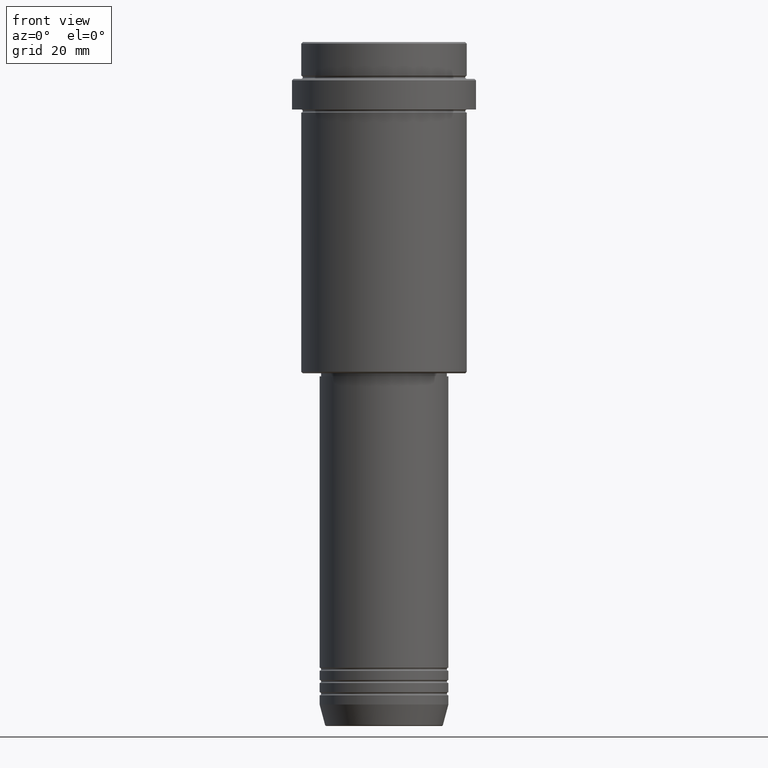
[diagram: clean part render]
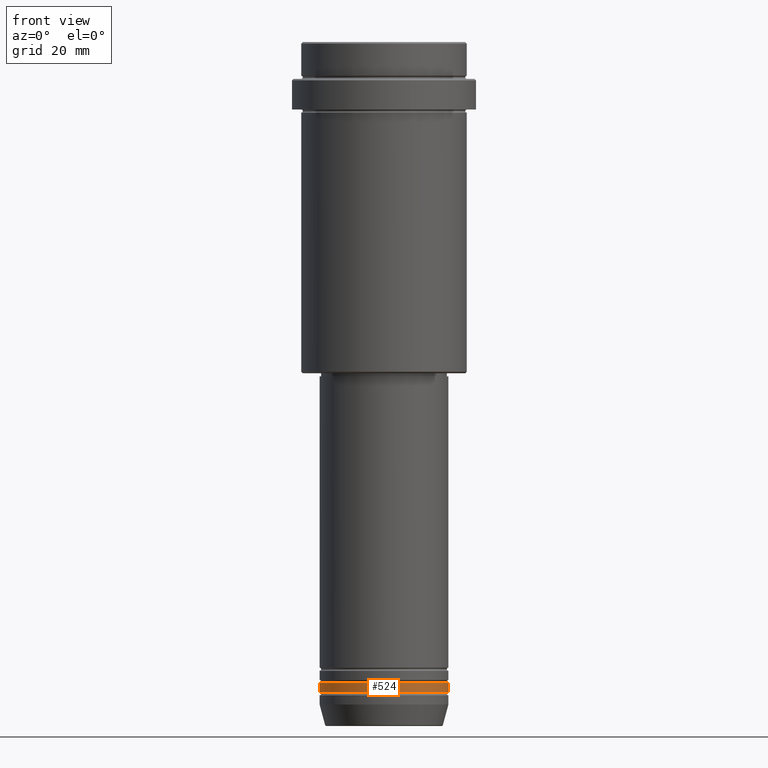
[diagram: same view with one face highlighted and labeled with its STEP entity id]
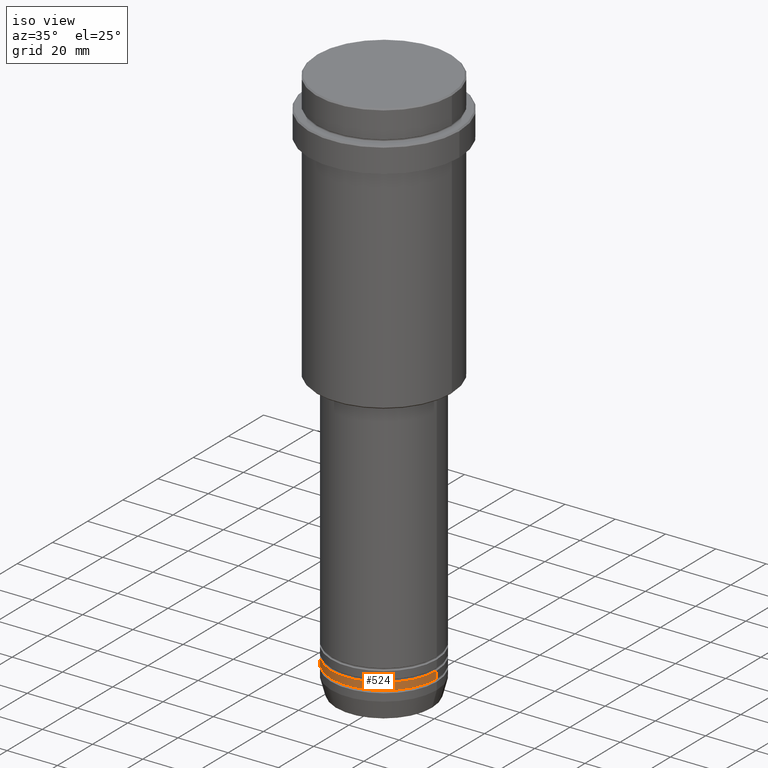
[diagram: same view with one face highlighted and labeled with its STEP entity id]
A machine part, front view. The second image highlights one B-rep face of the part: STEP entity #524.
A second angle (iso view) of the same face is appended — the face is thin or edge-on in the first view.
In plain terms, the highlighted cylindrical surface (partial cylindrical patch) has radius 21 mm, axis along (-0, -0, 1).
Its self-contained STEP definition (entity closure, byte-faithful):
#19 = CIRCLE ( 'NONE', #1209, 21.00000000000000000 ) ;
#45 = CARTESIAN_POINT ( 'NONE',  ( 0.000000000000000000, 0.000000000000000000, -211.9999999999999147 ) ) ;
#57 = CYLINDRICAL_SURFACE ( 'NONE', #895, 21.00000000000000000 ) ;
#58 = DIRECTION ( 'NONE',  ( -0.000000000000000000, -0.000000000000000000, 1.000000000000000000 ) ) ;
#62 = VERTEX_POINT ( 'NONE', #254 ) ;
#64 = EDGE_CURVE ( 'NONE', #483, #956, #19, .T. ) ;
#80 = FACE_OUTER_BOUND ( 'NONE', #813, .T. ) ;
#132 = AXIS2_PLACEMENT_3D ( 'NONE', #705, #1122, #1011 ) ;
#177 = VERTEX_POINT ( 'NONE', #471 ) ;
#254 = CARTESIAN_POINT ( 'NONE',  ( 21.00000000000000000, 0.000000000000000000, -208.9999999999999147 ) ) ;
#293 = VECTOR ( 'NONE', #58, 1000.000000000000000 ) ;
#312 = EDGE_CURVE ( 'NONE', #483, #177, #600, .T. ) ;
#328 = DIRECTION ( 'NONE',  ( -0.000000000000000000, -0.000000000000000000, 1.000000000000000000 ) ) ;
#354 = CARTESIAN_POINT ( 'NONE',  ( -21.00000000000000000, 2.571758278209441661E-15, 0.000000000000000000 ) ) ;
#375 = EDGE_CURVE ( 'NONE', #177, #62, #964, .T. ) ;
#403 = CARTESIAN_POINT ( 'NONE',  ( -21.00000000000000000, 2.571758278209441661E-15, -211.9999999999999147 ) ) ;
#471 = CARTESIAN_POINT ( 'NONE',  ( -21.00000000000000000, 2.571758278209441661E-15, -208.9999999999999147 ) ) ;
#483 = VERTEX_POINT ( 'NONE', #403 ) ;
#515 = CARTESIAN_POINT ( 'NONE',  ( 0.000000000000000000, 0.000000000000000000, 0.000000000000000000 ) ) ;
#524 = ADVANCED_FACE ( 'NONE', ( #80 ), #57, .T. ) ;
#600 = LINE ( 'NONE', #354, #293 ) ;
#705 = CARTESIAN_POINT ( 'NONE',  ( 0.000000000000000000, 0.000000000000000000, -208.9999999999999147 ) ) ;
#781 = DIRECTION ( 'NONE',  ( -0.000000000000000000, -0.000000000000000000, 1.000000000000000000 ) ) ;
#813 = EDGE_LOOP ( 'NONE', ( #841, #1277, #840, #1144 ) ) ;
#840 = ORIENTED_EDGE ( 'NONE', *, *, #1336, .T. ) ;
#841 = ORIENTED_EDGE ( 'NONE', *, *, #312, .F. ) ;
#885 = LINE ( 'NONE', #1321, #1355 ) ;
#891 = CARTESIAN_POINT ( 'NONE',  ( 21.00000000000000000, 0.000000000000000000, -211.9999999999999147 ) ) ;
#895 = AXIS2_PLACEMENT_3D ( 'NONE', #515, #942, #1377 ) ;
#942 = DIRECTION ( 'NONE',  ( -0.000000000000000000, -0.000000000000000000, 1.000000000000000000 ) ) ;
#956 = VERTEX_POINT ( 'NONE', #891 ) ;
#964 = CIRCLE ( 'NONE', #132, 21.00000000000000000 ) ;
#1011 = DIRECTION ( 'NONE',  ( 1.000000000000000000, 0.000000000000000000, 0.000000000000000000 ) ) ;
#1122 = DIRECTION ( 'NONE',  ( -0.000000000000000000, -0.000000000000000000, 1.000000000000000000 ) ) ;
#1144 = ORIENTED_EDGE ( 'NONE', *, *, #375, .F. ) ;
#1209 = AXIS2_PLACEMENT_3D ( 'NONE', #45, #781, #1343 ) ;
#1277 = ORIENTED_EDGE ( 'NONE', *, *, #64, .T. ) ;
#1321 = CARTESIAN_POINT ( 'NONE',  ( 21.00000000000000000, 0.000000000000000000, 0.000000000000000000 ) ) ;
#1336 = EDGE_CURVE ( 'NONE', #956, #62, #885, .T. ) ;
#1343 = DIRECTION ( 'NONE',  ( 1.000000000000000000, 0.000000000000000000, 0.000000000000000000 ) ) ;
#1355 = VECTOR ( 'NONE', #328, 1000.000000000000000 ) ;
#1377 = DIRECTION ( 'NONE',  ( 1.000000000000000000, 0.000000000000000000, 0.000000000000000000 ) ) ;